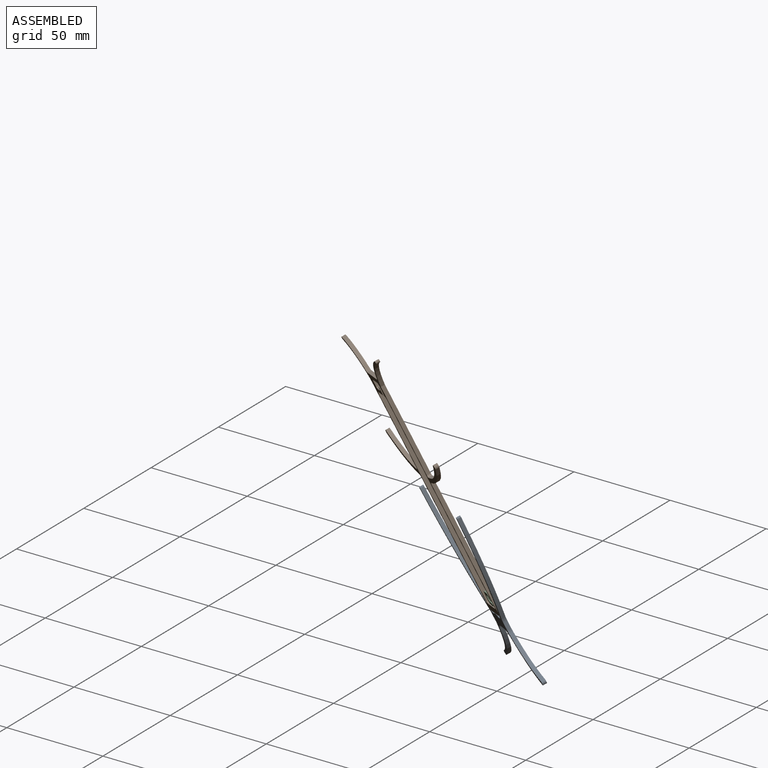
[diagram: assembled view]
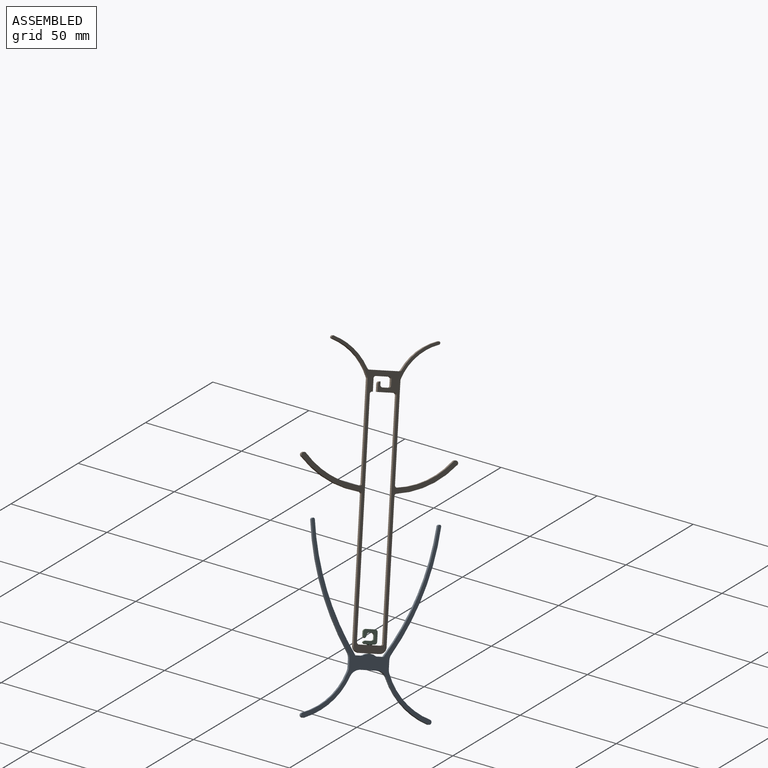
[diagram: assembled view, second angle]
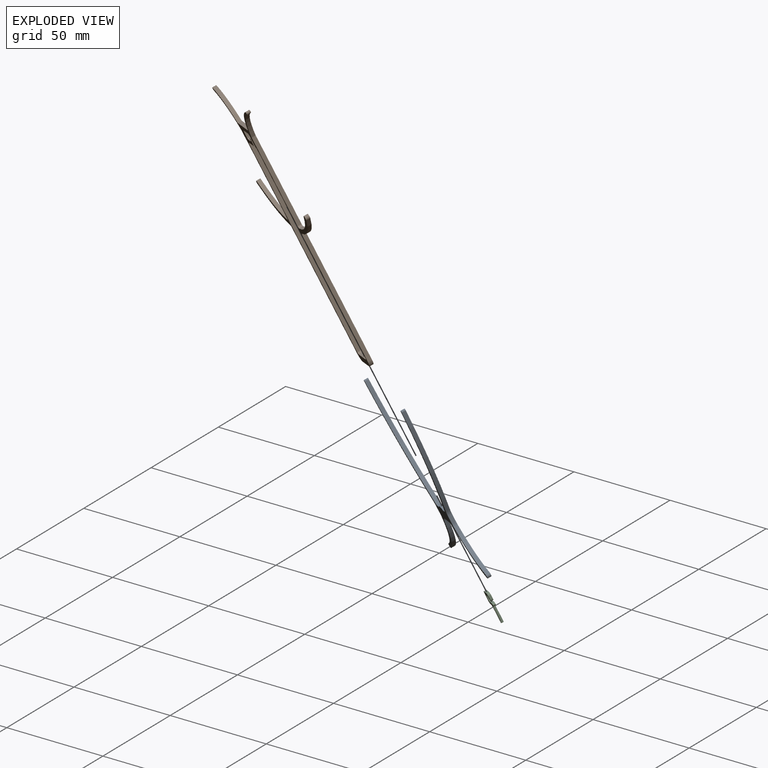
[diagram: exploded view]
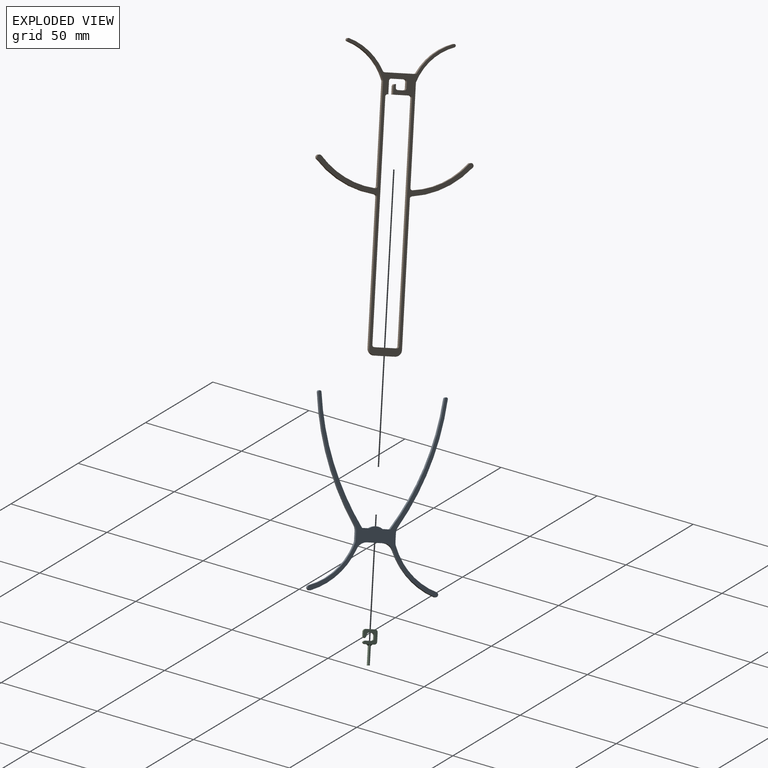
[diagram: exploded view, second angle]
ASSEMBLY  parts=3 mates=2
PART A: 31 faces, bbox 58.9x85.4x2 mm
  f0: plane 0.26x0.02mm, normal (0,1,0), area 0mm2, adj f19,f22,f23,f24
  f1: plane 3.44x2mm, normal (0,1,0), area 6.9mm2, adj f8,f18,f19,f23
  f2: cylinder r=30.25mm len=19.53mm, axis (0,0,-1), area 56.2mm2, adj f17,f18,f19,f26
  f3: plane 3.65x2mm, normal (1,0,0), area 7.3mm2, adj f18,f19,f26,f30
  f4: cylinder r=123.89mm len=55.54mm, axis (0,0,-1), area 118.8mm2, adj f5,f18,f19,f30
  f5: cylinder r=0.71mm len=2mm, axis (0,0,-1), area 4.5mm2, adj f4,f6,f18,f19
  f6: cylinder r=121.88mm len=56.91mm, axis (0,0,-1), area 122.9mm2, adj f5,f7,f18,f19
  f7: plane 3.23x2mm, normal (0,1,0), area 6.5mm2, adj f6,f18,f19,f24
  f8: cylinder r=121.88mm len=56.91mm, axis (0,0,-1), area 122.9mm2, adj f1,f9,f18,f19
  f9: cylinder r=0.71mm len=2mm, axis (0,0,-1), area 4.5mm2, adj f8,f10,f18,f19
  f10: cylinder r=123.89mm len=55.54mm, axis (0,0,-1), area 118.8mm2, adj f9,f18,f19,f29
  f11: plane 3.65x2mm, normal (-1,0,0), area 7.3mm2, adj f18,f19,f27,f29
  f12: cylinder r=30.25mm len=19.53mm, axis (0,0,-1), area 56.2mm2, adj f13,f18,f19,f27
  f13: cylinder r=1.13mm len=2.14mm, axis (0,0,-1), area 7mm2, adj f12,f14,f18,f19
  f14: cylinder r=33.7mm len=19.63mm, axis (0,0,-1), area 55.6mm2, adj f13,f18,f19,f28
  f15: plane 7.2x2mm, normal (0,-1,0), area 14.4mm2, adj f18,f19,f25,f28
  f16: cylinder r=33.7mm len=19.63mm, axis (0,0,-1), area 55.6mm2, adj f17,f18,f19,f25
  f17: cylinder r=1.13mm len=2.14mm, axis (0,0,-1), area 7mm2, adj f2,f16,f18,f19
  f18: plane 85.37x58.92mm, normal (0,0,1), area 455.1mm2, adj f1,f2,f3,f4,f5,f6,f7,f8
  f19: plane 85.37x58.92mm, normal (0,0,-1), area 455.1mm2, adj f0,f1,f2,f3,f4,f5,f6,f7
  f20: plane 0.26x0.02mm, normal (0,1,0), area 0mm2, adj f18,f22,f23,f24
  f21: plane 1.5x1.5mm, normal (0,1,0), area 1.8mm2, adj f22
  f22: cylinder r=0.75mm len=5mm, axis (0,1,0), area 23.4mm2, adj f0,f20,f21,f23,f24
  f23: cylinder r=5.08mm len=3.03mm, axis (0,0,-1), area 5.5mm2, adj f0,f1,f18,f19,f20,f22
  f24: cylinder r=5.08mm len=3.03mm, axis (0,0,-1), area 5.8mm2, adj f0,f7,f18,f19,f20,f22
  f25: cylinder r=5.08mm len=4.68mm, axis (0,0,-1), area 11.9mm2, adj f15,f16,f18,f19
  f26: cylinder r=5.08mm len=2mm, axis (0,0,-1), area 3.5mm2, adj f2,f3,f18,f19
  f27: cylinder r=5.08mm len=2mm, axis (0,0,-1), area 3.5mm2, adj f11,f12,f18,f19
  f28: cylinder r=5.08mm len=4.68mm, axis (0,0,-1), area 11.9mm2, adj f14,f15,f18,f19
  f29: cylinder r=5.08mm len=2.77mm, axis (0,0,-1), area 5.9mm2, adj f10,f11,f18,f19
  f30: cylinder r=5.08mm len=2.77mm, axis (0,0,-1), area 5.9mm2, adj f3,f4,f18,f19
PART B: 52 faces, bbox 71.3x134.5x2 mm
  f0: plane 134.53x71.3mm, normal (0,0,1), area 672.5mm2, adj f2,f3,f4,f5,f6,f7,f8,f9
  f1: plane 134.53x71.3mm, normal (0,0,-1), area 672.5mm2, adj f2,f3,f4,f5,f6,f7,f8,f9
  f2: plane 7.74x2mm, normal (0,-1,0), area 15.5mm2, adj f0,f1,f31,f41
  f3: plane 105.95x2mm, normal (1,0,0), area 211.9mm2, adj f0,f1,f40,f50
  f4: plane 105.95x2mm, normal (-1,0,0), area 211.9mm2, adj f0,f1,f41,f51
  f5: plane 10.15x2mm, normal (0,1,0), area 18.5mm2, adj f0,f1,f26,f50,f51
  f6: plane 13.8x2mm, normal (0,1,0), area 27.6mm2, adj f0,f1,f48,f49
  f7: cylinder r=27.54mm len=16.2mm, axis (0,0,-1), area 42.9mm2, adj f0,f1,f8,f49
  f8: cylinder r=0.76mm len=2mm, axis (0,0,-1), area 3.9mm2, adj f0,f1,f7,f9
  f9: cylinder r=26.08mm len=16.79mm, axis (0,0,-1), area 47.7mm2, adj f0,f1,f8,f42
  f10: plane 44.81x2mm, normal (-1,0,0), area 89.6mm2, adj f0,f1,f42,f43
  f11: cylinder r=37.65mm len=25.1mm, axis (0,0,-1), area 57.7mm2, adj f0,f1,f12,f43
  f12: cylinder r=1.17mm len=2.22mm, axis (0,0,-1), area 8mm2, adj f0,f1,f11,f13
  f13: cylinder r=42.61mm len=26.6mm, axis (0,0,-1), area 60.9mm2, adj f0,f1,f12,f44
  f14: plane 64.62x2mm, normal (-1,0,0), area 129.2mm2, adj f0,f1,f24,f44
  f15: plane 9x2mm, normal (0,-1,0), area 16.2mm2, adj f0,f1,f24,f25,f26
  f16: plane 64.62x2mm, normal (1,0,0), area 129.2mm2, adj f0,f1,f25,f45
  f17: cylinder r=42.61mm len=26.6mm, axis (0,0,-1), area 60.9mm2, adj f0,f1,f18,f45
  f18: cylinder r=1.17mm len=2.22mm, axis (0,0,-1), area 8mm2, adj f0,f1,f17,f19
  f19: cylinder r=37.65mm len=25.1mm, axis (0,0,-1), area 57.7mm2, adj f0,f1,f18,f46
  f20: plane 44.81x2mm, normal (1,0,0), area 89.6mm2, adj f0,f1,f46,f47
  f21: cylinder r=26.08mm len=16.79mm, axis (0,0,-1), area 47.7mm2, adj f0,f1,f22,f47
  f22: cylinder r=0.76mm len=2mm, axis (0,0,-1), area 3.9mm2, adj f0,f1,f21,f23
  f23: cylinder r=27.54mm len=16.2mm, axis (0,0,-1), area 42.9mm2, adj f0,f1,f22,f48
  f24: cylinder r=3mm len=3mm, axis (0,0,1), area 9.4mm2, adj f0,f1,f14,f15
  f25: cylinder r=3mm len=3mm, axis (0,0,-1), area 9.4mm2, adj f0,f1,f15,f16
  f26: cylinder r=0.75mm len=3.56mm, axis (0,1,0), area 16.8mm2, adj f5,f15
  f27: plane 2x0.32mm, normal (0,-1,0), area 0.6mm2, adj f0,f1,f30,f40
  f28: plane 2.74x2mm, normal (-1,0,0), area 5.5mm2, adj f0,f1,f36,f37
  f29: plane 6.1x2mm, normal (0,-1,0), area 12.2mm2, adj f0,f1,f37,f39
  f30: plane 5.77x2mm, normal (1,0,0), area 11.5mm2, adj f0,f1,f27,f39
  f31: plane 3.53x2mm, normal (-1,0,0), area 7.1mm2, adj f0,f1,f2,f38
  f32: plane 2x0.17mm, normal (0,1,0), area 0.3mm2, adj f0,f1,f33,f38
  f33: plane 2x1.5mm, normal (1,0,0), area 3mm2, adj f0,f1,f32,f35
  f34: plane 2.84x2mm, normal (0,1,0), area 5.7mm2, adj f0,f1,f35,f36
  f35: cylinder r=1mm len=2mm, axis (0,0,1), area 3.1mm2, adj f0,f1,f33,f34
  f36: cylinder r=1mm len=2mm, axis (0,0,-1), area 3.1mm2, adj f0,f1,f28,f34
  f37: cylinder r=1mm len=2mm, axis (0,0,-1), area 3.1mm2, adj f0,f1,f28,f29
  f38: cylinder r=1mm len=2mm, axis (0,0,1), area 3.1mm2, adj f0,f1,f31,f32
  f39: cylinder r=1mm len=2mm, axis (0,0,-1), area 3.1mm2, adj f0,f1,f29,f30
  f40: cylinder r=1mm len=2mm, axis (0,0,1), area 3.1mm2, adj f0,f1,f3,f27
  f41: cylinder r=1mm len=2mm, axis (0,0,-1), area 3.1mm2, adj f0,f1,f2,f4
  f42: cylinder r=1mm len=2mm, axis (0,0,-1), area 0.7mm2, adj f0,f1,f9,f10
  f43: cylinder r=1mm len=2mm, axis (0,0,-1), area 3.3mm2, adj f0,f1,f10,f11
  f44: cylinder r=1mm len=2mm, axis (0,0,-1), area 2.9mm2, adj f0,f1,f13,f14
  f45: cylinder r=1mm len=2mm, axis (0,0,-1), area 2.9mm2, adj f0,f1,f16,f17
  f46: cylinder r=1mm len=2mm, axis (0,0,-1), area 3.3mm2, adj f0,f1,f19,f20
  f47: cylinder r=1mm len=2mm, axis (0,0,-1), area 0.7mm2, adj f0,f1,f20,f21
  f48: cylinder r=1mm len=2mm, axis (0,0,-1), area 2.1mm2, adj f0,f1,f6,f23
  f49: cylinder r=1mm len=2mm, axis (0,0,-1), area 2.1mm2, adj f0,f1,f6,f7
  f50: cylinder r=1mm len=2mm, axis (0,0,-1), area 3.1mm2, adj f0,f1,f3,f5
  f51: cylinder r=1mm len=2mm, axis (0,0,1), area 3.1mm2, adj f0,f1,f4,f5
PART C: 33 faces, bbox 6.7x1.6x15.7 mm
  f0: bspline ~1.09x0.81mm, area 0.3mm2, adj f4,f8,f30
  f1: bspline ~1.09x0.81mm, area 0.3mm2, adj f5,f8,f32
  f2: bspline ~1.09x0.81mm, area 0.3mm2, adj f5,f8,f27
  f3: bspline ~1.09x0.81mm, area 0.3mm2, adj f4,f8,f29
  f4: plane 6.72x6.67mm, normal (0,-1,0), area 27.2mm2, adj f0,f3,f6,f7,f10,f11,f12,f13
  f5: plane 6.72x6.67mm, normal (0,1,0), area 27.2mm2, adj f1,f2,f6,f7,f10,f11,f12,f13
  f6: plane 1.3x1.1mm, normal (1,0,0), area 1.4mm2, adj f4,f5,f22,f24
  f7: plane 2.55x1.3mm, normal (0,0,-1), area 3.3mm2, adj f4,f5,f18,f24
  f8: cylinder r=0.65mm len=9mm, axis (0,0,-1), area 33.9mm2, adj f0,f1,f2,f3,f9,f27,f28,f29
  f9: plane 1.3x1.3mm, normal (0,0,1), area 1.3mm2, adj f8
  f10: plane 1.3x0.51mm, normal (0,0,1), area 0.5mm2, adj f4,f5,f26,f31
  f11: plane 4.1x1.3mm, normal (-1,0,0), area 5.3mm2, adj f4,f5,f25,f26
  f12: plane 1.6x1.3mm, normal (1,0,0), area 2.1mm2, adj f4,f5,f19,f23
  f13: plane 1.3x0.51mm, normal (0,0,1), area 0.5mm2, adj f4,f5,f17,f28
  f14: plane 4.05x1.3mm, normal (0,0,-1), area 5.3mm2, adj f4,f5,f23,f25
  f15: plane 1.3x0.1mm, normal (-1,0,0), area 0.1mm2, adj f4,f5,f20,f21
  f16: plane 1.3x1.05mm, normal (0,0,1), area 1.4mm2, adj f4,f5,f21,f22
  f17: cylinder r=1.2mm len=1.3mm, axis (0,-1,0), area 1.9mm2, adj f4,f5,f13,f18
  f18: cylinder r=1.2mm len=1.3mm, axis (0,1,0), area 1.9mm2, adj f4,f5,f7,f17
  f19: cylinder r=1.2mm len=1.3mm, axis (0,-1,0), area 1.9mm2, adj f4,f5,f12,f20
  f20: cylinder r=1.2mm len=1.3mm, axis (0,1,0), area 1.9mm2, adj f4,f5,f15,f19
  f21: cylinder r=1.2mm len=1.3mm, axis (0,-1,0), area 2.5mm2, adj f4,f5,f15,f16
  f22: cylinder r=1.2mm len=1.3mm, axis (0,-1,0), area 2.5mm2, adj f4,f5,f6,f16
  f23: cylinder r=1.2mm len=1.3mm, axis (0,1,0), area 2.5mm2, adj f4,f5,f12,f14
  f24: cylinder r=1.2mm len=1.3mm, axis (0,-1,0), area 2.5mm2, adj f4,f5,f6,f7
  f25: cylinder r=1.2mm len=1.3mm, axis (0,-1,0), area 2.5mm2, adj f4,f5,f11,f14
  f26: cylinder r=1.2mm len=1.3mm, axis (0,1,0), area 2.5mm2, adj f4,f5,f10,f11
  f27: bspline ~1.19x1mm, area 0.4mm2, adj f2,f5,f8,f28
  f28: torus R=1.65mm, axis (0,0,-1), area 1.3mm2, adj f8,f13,f27,f29
  f29: bspline ~1.19x1mm, area 0.4mm2, adj f3,f4,f8,f28
  f30: bspline ~1.19x1mm, area 0.4mm2, adj f0,f4,f8,f31
  f31: torus R=1.65mm, axis (0,0,-1), area 1.3mm2, adj f8,f10,f30,f32
  f32: bspline ~1.19x1mm, area 0.4mm2, adj f1,f5,f8,f31
PLACE A rot(axis=(0.91,-0.39,-0.13),114.7deg) t=(-0.82,-44.1,18.42)mm
PLACE B rot(axis=(0.1,0.57,0.81),142.8deg) t=(2.4,-50.98,22.82)mm
PLACE C rot(axis=(-0.94,0.31,-0.16),161.3deg) t=(-4.42,-46.51,25.22)mm
MATE cylindrical C.f8 <-> B.f26  axis (0.39,0.21,-0.9) through (-0.95,-44.66,17.12)mm
MATE fastened A.f22 <-> C.f8  axis (-0.39,-0.21,0.9) through (-0.95,-44.66,17.12)mm
